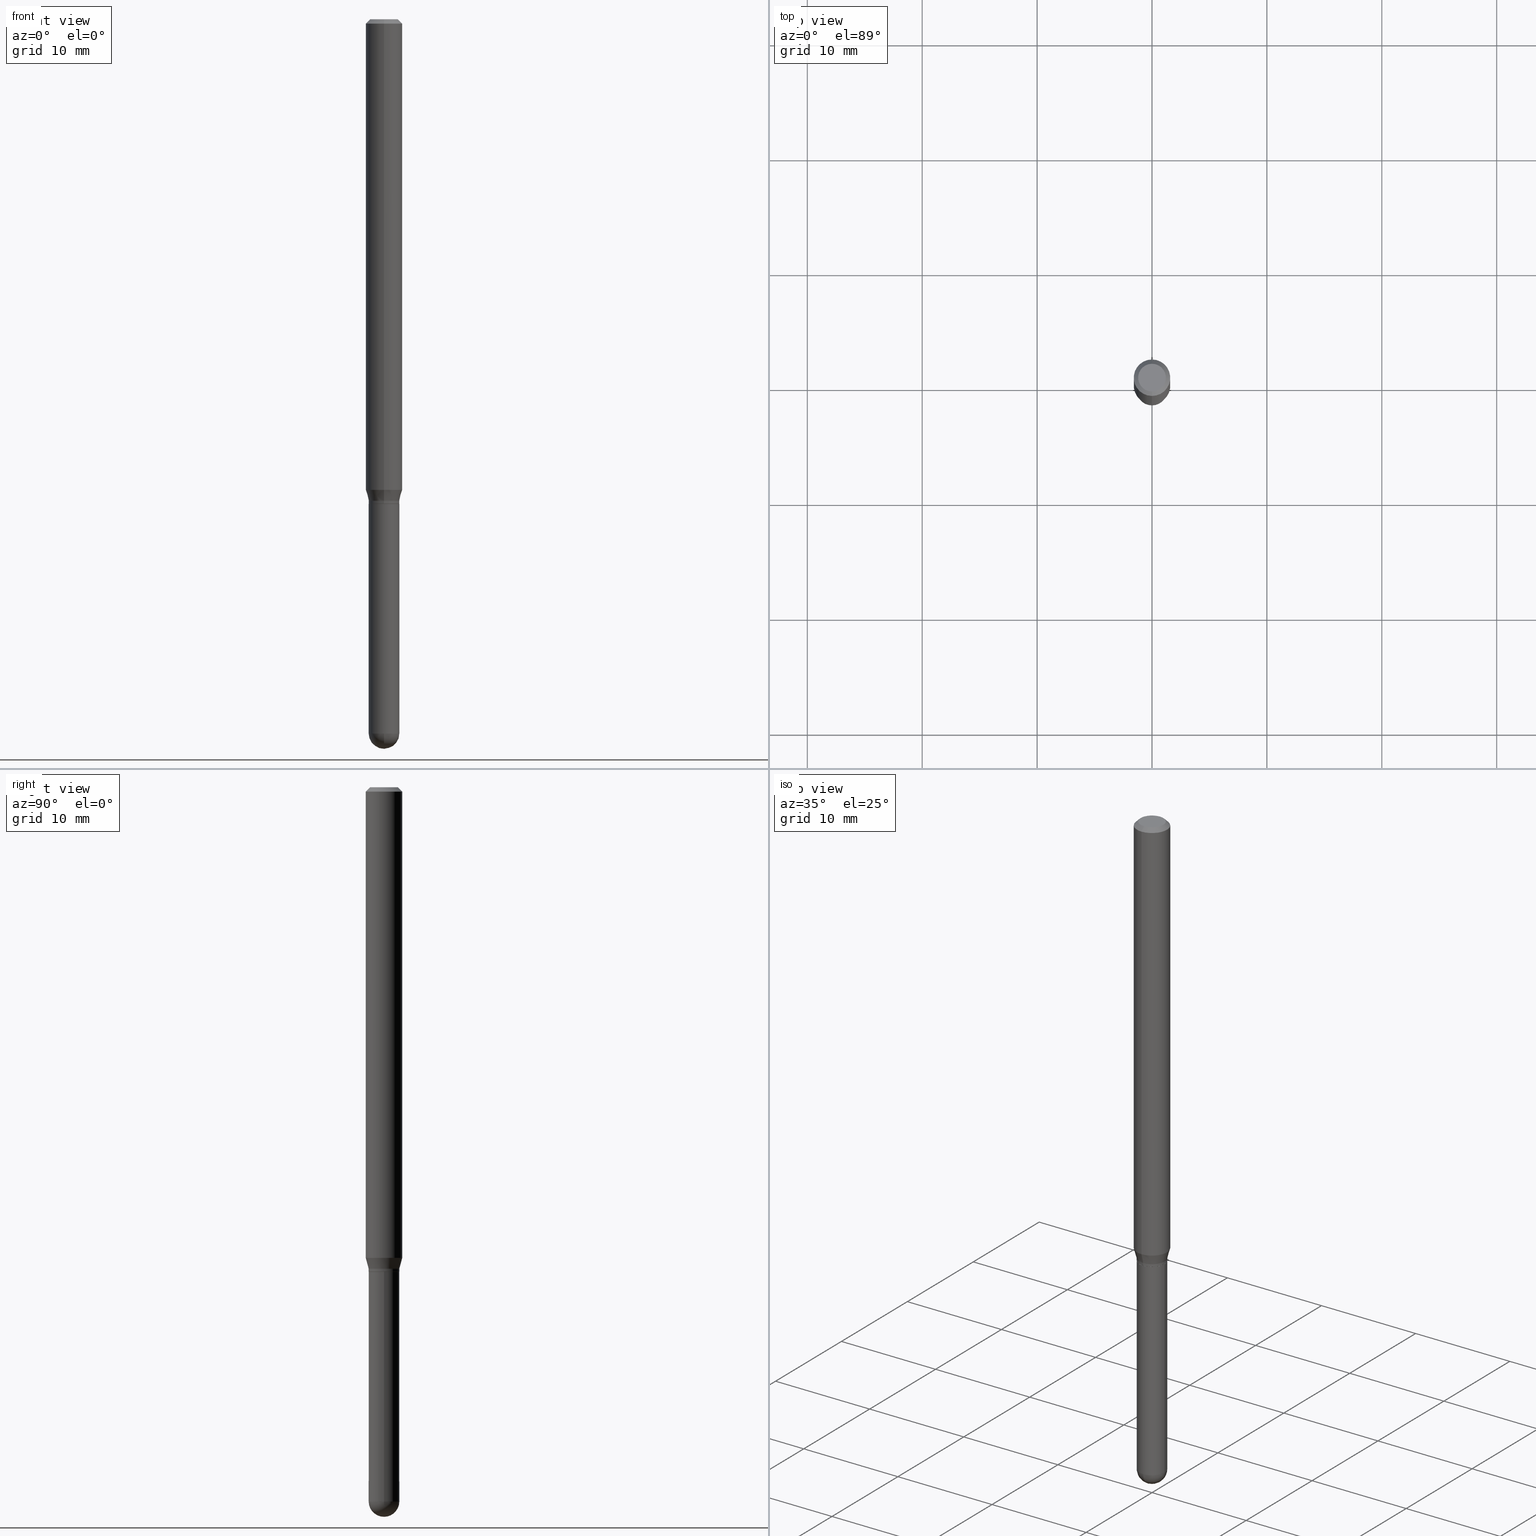
[diagram: canonical four-view strip — front | top / right | iso, engineering-drawing reading convention]
A machine part, canonical four-view strip (front | top / right | iso — engineering-drawing reading convention). The complete STEP part file that produces these views, byte-faithful:
ISO-10303-21;
HEADER;
FILE_DESCRIPTION (( 'STEP AP203' ),
    '1' );
FILE_NAME ('01551.STEP',
    '2024-03-07T19:38:42',
    ( '' ),
    ( '' ),
    'SwSTEP 2.0',
    'SolidWorks 2023',
    '' );
FILE_SCHEMA (( 'CONFIG_CONTROL_DESIGN' ));
ENDSEC;

DATA;
#1 = DIRECTION ( 'NONE',  ( -1.000000000000000000, 6.982962677686265133E-15, -4.883557194083112340E-29 ) ) ;
#2 = CARTESIAN_POINT ( 'NONE',  ( 4.059304744707372422E-29, -5.796107446490983293E-15, -1.660000000000000586 ) ) ;
#3 = CIRCLE ( 'NONE', #291, 0.05250000000000002581 ) ;
#4 = CARTESIAN_POINT ( 'NONE',  ( 3.668046456060879803E-31, -5.237446487793057096E-17, -0.01500000000000000812 ) ) ;
#5 = EDGE_LOOP ( 'NONE', ( #466, #180 ) ) ;
#6 = ADVANCED_FACE ( 'NONE', ( #94 ), #399, .T. ) ;
#7 = LENGTH_MEASURE_WITH_UNIT ( LENGTH_MEASURE( 0.02539999999999999897 ), #196 );
#8 = CIRCLE ( 'NONE', #167, 0.05249999999999964417 ) ;
#9 = ORIENTED_EDGE ( 'NONE', *, *, #28, .F. ) ;
#10 = ORIENTED_EDGE ( 'NONE', *, *, #63, .F. ) ;
#11 = ORIENTED_EDGE ( 'NONE', *, *, #455, .F. ) ;
#12 = EDGE_CURVE ( 'NONE', #283, #255, #172, .T. ) ;
#13 = EDGE_LOOP ( 'NONE', ( #215, #143, #278, #345 ) ) ;
#14 = VERTEX_POINT ( 'NONE', #297 ) ;
#15 = CALENDAR_DATE ( 2024, 7, 3 ) ;
#16 = CARTESIAN_POINT ( 'NONE',  ( -3.631140592396452308E-16, -0.05200000000000579159, -1.660000000000000364 ) ) ;
#17 = ORIENTED_EDGE ( 'NONE', *, *, #130, .F. ) ;
#18 = CLOSED_SHELL ( 'NONE', ( #257, #145, #396, #296, #101 ) ) ;
#19 = AXIS2_PLACEMENT_3D ( 'NONE', #315, #195, #354 ) ;
#20 = PERSON_AND_ORGANIZATION_ROLE ( 'creator' ) ;
#21 = ORIENTED_EDGE ( 'NONE', *, *, #33, .F. ) ;
#22 = EDGE_CURVE ( 'NONE', #45, #253, #258, .T. ) ;
#23 = ORIENTED_EDGE ( 'NONE', *, *, #33, .T. ) ;
#24 = DIRECTION ( 'NONE',  ( 4.937700262164548042E-15, 0.7071067811865451302, -0.7071067811865499042 ) ) ;
#25 = AXIS2_PLACEMENT_3D ( 'NONE', #235, #160, #489 ) ;
#26 = LINE ( 'NONE', #140, #400 ) ;
#27 = CC_DESIGN_APPROVAL ( #141, ( #493 ) ) ;
#28 = EDGE_CURVE ( 'NONE', #273, #30, #209, .T. ) ;
#29 = PERSON_AND_ORGANIZATION ( #330, #239 ) ;
#30 = VERTEX_POINT ( 'NONE', #418 ) ;
#31 = DIRECTION ( 'NONE',  ( -2.445364304040584784E-29, 3.491630991862036470E-15, 1.000000000000000000 ) ) ;
#32 = FACE_OUTER_BOUND ( 'NONE', #128, .T. ) ;
#33 = EDGE_CURVE ( 'NONE', #283, #342, #436, .T. ) ;
#34 = CONICAL_SURFACE ( 'NONE', #509, 0.05250000000000019235, 0.2617993877991508511 ) ;
#35 = DIRECTION ( 'NONE',  ( 6.982962677686265922E-15, 1.000000000000000000, -3.491630991862036470E-15 ) ) ;
#36 = DIRECTION ( 'NONE',  ( -2.445364304040584784E-29, 3.491630991862036470E-15, 1.000000000000000000 ) ) ;
#37 = DIRECTION ( 'NONE',  ( -6.982962677686266711E-15, -1.000000000000000000, 3.491630991862036470E-15 ) ) ;
#38 = FACE_OUTER_BOUND ( 'NONE', #334, .T. ) ;
#39 = CYLINDRICAL_SURFACE ( 'NONE', #19, 0.06250000000000000000 ) ;
#40 = VECTOR ( 'NONE', #495, 39.37007874015748143 ) ;
#41 = APPROVAL_PERSON_ORGANIZATION ( #421, #113, #375 ) ;
#42 = EDGE_CURVE ( 'NONE', #342, #452, #103, .T. ) ;
#43 = EDGE_CURVE ( 'NONE', #328, #14, #3, .T. ) ;
#44 = SHAPE_DEFINITION_REPRESENTATION ( #192, #457 ) ;
#45 = VERTEX_POINT ( 'NONE', #285 ) ;
#46 = AXIS2_PLACEMENT_3D ( 'NONE', #434, #332, #362 ) ;
#47 = CARTESIAN_POINT ( 'NONE',  ( 6.111427203953745667E-29, -8.731918044955625447E-15, -2.500000000000000000 ) ) ;
#48 = EDGE_LOOP ( 'NONE', ( #459, #406 ) ) ;
#49 = CYLINDRICAL_SURFACE ( 'NONE', #89, 0.05249999999999999806 ) ;
#50 = ORIENTED_EDGE ( 'NONE', *, *, #191, .T. ) ;
#51 = PERSON_AND_ORGANIZATION_ROLE ( 'design_owner' ) ;
#52 = EDGE_CURVE ( 'NONE', #262, #408, #212, .T. ) ;
#53 = CYLINDRICAL_SURFACE ( 'NONE', #186, 0.05249999999999991479 ) ;
#54 = ORIENTED_EDGE ( 'NONE', *, *, #312, .F. ) ;
#55 = DATE_AND_TIME ( #415, #447 ) ;
#56 = VECTOR ( 'NONE', #24, 39.37007874015748143 ) ;
#57 = PRODUCT_DEFINITION_FORMATION_WITH_SPECIFIED_SOURCE ( 'ANY', '', #139, .NOT_KNOWN. ) ;
#58 = DIRECTION ( 'NONE',  ( -2.445364304040584784E-29, 3.491630991862036470E-15, 1.000000000000000000 ) ) ;
#59 = CARTESIAN_POINT ( 'NONE',  ( 0.000000000000000000, 0.000000000000000000, 0.000000000000000000 ) ) ;
#60 = CC_DESIGN_DATE_AND_TIME_ASSIGNMENT ( #97, #245, ( #75 ) ) ;
#61 = DIRECTION ( 'NONE',  ( -6.982962677686265922E-15, -1.000000000000000000, 4.370956789862821150E-15 ) ) ;
#62 = DIRECTION ( 'NONE',  ( -1.000000000000000000, 6.982962677686265922E-15, -4.876176775795935793E-29 ) ) ;
#63 = EDGE_CURVE ( 'NONE', #147, #243, #325, .T. ) ;
#64 = DIRECTION ( 'NONE',  ( -2.445364304040584784E-29, 3.491630991862036470E-15, 1.000000000000000000 ) ) ;
#65 = DIRECTION ( 'NONE',  ( -6.982962677686265133E-15, -1.000000000000000000, 5.203519987931965439E-15 ) ) ;
#66 = SECURITY_CLASSIFICATION_LEVEL ( 'unclassified' ) ;
#67 = EDGE_CURVE ( 'NONE', #253, #452, #380, .T. ) ;
#68 = ORIENTED_EDGE ( 'NONE', *, *, #184, .F. ) ;
#69 = AXIS2_PLACEMENT_3D ( 'NONE', #181, #193, #347 ) ;
#70 = APPROVAL_PERSON_ORGANIZATION ( #477, #141, #155 ) ;
#71 = CARTESIAN_POINT ( 'NONE',  ( 3.730349362740519428E-16, 0.05249999999999991479, -1.833106270727566070E-16 ) ) ;
#72 = DATE_AND_TIME ( #470, #384 ) ;
#73 = DIRECTION ( 'NONE',  ( -2.445364304040584784E-29, 3.491630991862036470E-15, 1.000000000000000000 ) ) ;
#74 = LOCAL_TIME ( 14, 38, 42.00000000000000000, #333 ) ;
#75 = PRODUCT_DEFINITION ( 'UNKNOWN', '', #57, #182 ) ;
#76 = FACE_OUTER_BOUND ( 'NONE', #472, .T. ) ;
#77 = CARTESIAN_POINT ( 'NONE',  ( 3.712585794346919227E-16, 0.05199999999999419670, -1.660000000000000808 ) ) ;
#78 = ORIENTED_EDGE ( 'NONE', *, *, #307, .F. ) ;
#79 = EDGE_CURVE ( 'NONE', #488, #161, #474, .T. ) ;
#80 = DIRECTION ( 'NONE',  ( -2.445364304040584784E-29, 3.491630991862036470E-15, 1.000000000000000000 ) ) ;
#81 = CC_DESIGN_PERSON_AND_ORGANIZATION_ASSIGNMENT ( #305, #250, ( #57 ) ) ;
#82 = VECTOR ( 'NONE', #386, 39.37007874015748143 ) ;
#83 = DIRECTION ( 'NONE',  ( -6.982962677686265922E-15, -1.000000000000000000, 3.491630991862036470E-15 ) ) ;
#84 = CIRCLE ( 'NONE', #157, 0.05250000000000019235 ) ;
#85 = CARTESIAN_POINT ( 'NONE',  ( -0.05249999999999999806, -6.797594863375057759E-15, -2.447500000000000231 ) ) ;
#86 = ORIENTED_EDGE ( 'NONE', *, *, #398, .T. ) ;
#87 = DIRECTION ( 'NONE',  ( 1.000000000000000000, -6.982962677686265922E-15, 4.876176775795935232E-29 ) ) ;
#88 = EDGE_LOOP ( 'NONE', ( #154, #338, #511, #91 ) ) ;
#89 = AXIS2_PLACEMENT_3D ( 'NONE', #207, #366, #87 ) ;
#90 = AXIS2_PLACEMENT_3D ( 'NONE', #337, #216, #377 ) ;
#91 = ORIENTED_EDGE ( 'NONE', *, *, #293, .F. ) ;
#92 = ADVANCED_FACE ( 'NONE', ( #76 ), #34, .T. ) ;
#93 = DIRECTION ( 'NONE',  ( -2.445468806185136597E-29, 3.491481338843145583E-15, 1.000000000000000000 ) ) ;
#94 = FACE_OUTER_BOUND ( 'NONE', #376, .T. ) ;
#95 = DIRECTION ( 'NONE',  ( 1.000000000000000000, 0.000000000000000000, 0.000000000000000000 ) ) ;
#96 = LINE ( 'NONE', #205, #357 ) ;
#97 = DATE_AND_TIME ( #287, #74 ) ;
#98 = ORIENTED_EDGE ( 'NONE', *, *, #343, .F. ) ;
#99 = CARTESIAN_POINT ( 'NONE',  ( 4.440892098501022564E-16, 0.06249999999999995143, -0.01500000000000022669 ) ) ;
#100 = ORIENTED_EDGE ( 'NONE', *, *, #411, .T. ) ;
#101 = ADVANCED_FACE ( 'NONE', ( #38 ), #222, .T. ) ;
#102 = ORIENTED_EDGE ( 'NONE', *, *, #52, .T. ) ;
#103 = LINE ( 'NONE', #369, #281 ) ;
#104 = CC_DESIGN_SECURITY_CLASSIFICATION ( #493, ( #57 ) ) ;
#105 = DIRECTION ( 'NONE',  ( -6.982962677686266711E-15, -1.000000000000000000, 3.491630991862037259E-15 ) ) ;
#106 = PLANE ( 'NONE',  #499 ) ;
#107 = CARTESIAN_POINT ( 'NONE',  ( 4.059304744707371862E-29, -5.796107446490981716E-15, -1.660000000000000364 ) ) ;
#108 = DIRECTION ( 'NONE',  ( -6.982962677686266711E-15, -1.000000000000000000, 5.253553833969737838E-15 ) ) ;
#109 = CIRCLE ( 'NONE', #498, 0.05250000000000002581 ) ;
#110 = CIRCLE ( 'NONE', #90, 0.05249999999999999806 ) ;
#111 = DIRECTION ( 'NONE',  ( 1.000000000000000000, -6.982962677686265922E-15, 4.876176775795935232E-29 ) ) ;
#112 = ADVANCED_FACE ( 'NONE', ( #32 ), #279, .T. ) ;
#113 = APPROVAL ( #214, 'UNSPECIFIED' ) ;
#114 = CARTESIAN_POINT ( 'NONE',  ( 2.164932633511182526E-46, -3.091214616149759990E-32, -8.853211073433792894E-18 ) ) ;
#115 = ORIENTED_EDGE ( 'NONE', *, *, #12, .T. ) ;
#116 = AXIS2_PLACEMENT_3D ( 'NONE', #107, #189, #512 ) ;
#117 = ORIENTED_EDGE ( 'NONE', *, *, #130, .T. ) ;
#118 = DIRECTION ( 'NONE',  ( -2.445364304040584784E-29, 3.491630991862036470E-15, 1.000000000000000000 ) ) ;
#119 = CARTESIAN_POINT ( 'NONE',  ( 4.059478218267327378E-29, -5.795859022479622985E-15, -1.660000000000000364 ) ) ;
#120 = EDGE_LOOP ( 'NONE', ( #68, #314, #100, #10 ) ) ;
#121 = DIRECTION ( 'NONE',  ( -2.445468806185136877E-29, 3.491481338843145188E-15, 1.000000000000000000 ) ) ;
#122 = ORIENTED_EDGE ( 'NONE', *, *, #411, .F. ) ;
#123 = ORIENTED_EDGE ( 'NONE', *, *, #293, .T. ) ;
#124 = CONICAL_SURFACE ( 'NONE', #46, 0.05250000000000019235, 0.2617993877991508511 ) ;
#125 = VECTOR ( 'NONE', #138, 39.37007874015748143 ) ;
#126 = CARTESIAN_POINT ( 'NONE',  ( -3.666055405784899636E-16, -0.05250000000000595163, -1.649999999999999911 ) ) ;
#127 = EDGE_CURVE ( 'NONE', #452, #255, #461, .T. ) ;
#128 = EDGE_LOOP ( 'NONE', ( #404, #425, #50, #321 ) ) ;
#129 = APPROVAL_ROLE ( '' ) ;
#130 = EDGE_CURVE ( 'NONE', #243, #283, #311, .T. ) ;
#131 = DIRECTION ( 'NONE',  ( -2.445468806185136597E-29, 3.491481338843145583E-15, 1.000000000000000000 ) ) ;
#132 = CARTESIAN_POINT ( 'NONE',  ( 3.668046456060879803E-31, -5.237446487793057096E-17, -0.01500000000000000812 ) ) ;
#133 = CARTESIAN_POINT ( 'NONE',  ( 4.364351673553919652E-16, 0.06249999999999995143, -0.01500000000000022669 ) ) ;
#134 = MANIFOLD_SOLID_BREP ( 'Body-Move/Copy2[1]', #18 ) ;
#135 = LOCAL_TIME ( 14, 38, 42.00000000000000000, #275 ) ;
#136 = CARTESIAN_POINT ( 'NONE',  ( 4.058082062555351373E-29, -5.794361630995051249E-15, -1.659500000000000419 ) ) ;
#137 = DATE_AND_TIME ( #173, #350 ) ;
#138 = DIRECTION ( 'NONE',  ( -2.445364304040584503E-29, 3.491630991862036470E-15, 1.000000000000000000 ) ) ;
#139 = PRODUCT ( '01551', '01551', '', ( #162 ) ) ;
#140 = CARTESIAN_POINT ( 'NONE',  ( 3.730349362740942455E-16, 0.05249999999999442613, -1.650000000000000355 ) ) ;
#141 = APPROVAL ( #435, 'UNSPECIFIED' ) ;
#142 = CARTESIAN_POINT ( 'NONE',  ( 4.034851101666965454E-29, -5.761191136572359761E-15, -1.650000000000000133 ) ) ;
#143 = ORIENTED_EDGE ( 'NONE', *, *, #163, .T. ) ;
#144 = AXIS2_PLACEMENT_3D ( 'NONE', #187, #1, #261 ) ;
#145 = ADVANCED_FACE ( 'NONE', ( #389 ), #441, .T. ) ;
#146 = DIRECTION ( 'NONE',  ( -1.000000000000000000, 7.105427357601001070E-15, -4.926315508542082329E-29 ) ) ;
#147 = VERTEX_POINT ( 'NONE', #351 ) ;
#148 = CARTESIAN_POINT ( 'NONE',  ( 4.034851101666965454E-29, -5.761191136572359761E-15, -1.650000000000000133 ) ) ;
#149 = EDGE_CURVE ( 'NONE', #328, #220, #109, .T. ) ;
#150 = DIRECTION ( 'NONE',  ( -6.982962677686266711E-15, -1.000000000000000000, 5.253553833969737838E-15 ) ) ;
#151 = EDGE_LOOP ( 'NONE', ( #468, #183, #11, #122 ) ) ;
#152 = CIRCLE ( 'NONE', #355, 0.06250000000000000000 ) ;
#153 = CARTESIAN_POINT ( 'NONE',  ( 0.000000000000000000, 0.000000000000000000, 0.000000000000000000 ) ) ;
#154 = ORIENTED_EDGE ( 'NONE', *, *, #43, .F. ) ;
#155 = APPROVAL_ROLE ( '' ) ;
#156 = ORIENTED_EDGE ( 'NONE', *, *, #149, .F. ) ;
#157 = AXIS2_PLACEMENT_3D ( 'NONE', #424, #64, #218 ) ;
#158 = APPLICATION_CONTEXT ( 'configuration controlled 3d designs of mechanical parts and assemblies' ) ;
#159 = ADVANCED_FACE ( 'NONE', ( #431 ), #164, .T. ) ;
#160 = DIRECTION ( 'NONE',  ( -2.445468806185136597E-29, 3.491481338843145583E-15, 1.000000000000000000 ) ) ;
#161 = VERTEX_POINT ( 'NONE', #77 ) ;
#162 = MECHANICAL_CONTEXT ( 'NONE', #320, 'mechanical' ) ;
#163 = EDGE_CURVE ( 'NONE', #161, #488, #446, .T. ) ;
#164 = CONICAL_SURFACE ( 'NONE', #300, 0.05199999999999999067, 0.7853981633969275844 ) ;
#165 = CC_DESIGN_PERSON_AND_ORGANIZATION_ASSIGNMENT ( #299, #427, ( #57 ) ) ;
#166 = ORIENTED_EDGE ( 'NONE', *, *, #460, .T. ) ;
#167 = AXIS2_PLACEMENT_3D ( 'NONE', #326, #242, #65 ) ;
#168 = DIRECTION ( 'NONE',  ( -2.445364304040584784E-29, 3.491630991862036470E-15, 1.000000000000000000 ) ) ;
#169 = DIMENSIONAL_EXPONENTS ( 1.000000000000000000, 0.000000000000000000, 0.000000000000000000, 0.000000000000000000, 0.000000000000000000, 0.000000000000000000, 0.000000000000000000 ) ;
#170 = CARTESIAN_POINT ( 'NONE',  ( 4.440892098501021578E-16, 0.06249999999999439337, -1.612679491924312591 ) ) ;
#171 = CARTESIAN_POINT ( 'NONE',  ( -4.287811248607203282E-16, -0.06250000000000005551, -0.01499999999999979128 ) ) ;
#172 = LINE ( 'NONE', #473, #419 ) ;
#173 = CALENDAR_DATE ( 2024, 7, 3 ) ;
#174 = ORIENTED_EDGE ( 'NONE', *, *, #455, .T. ) ;
#175 = VECTOR ( 'NONE', #458, 39.37007874015748143 ) ;
#176 = AXIS2_PLACEMENT_3D ( 'NONE', #197, #131, #454 ) ;
#177 = CARTESIAN_POINT ( 'NONE',  ( 5.985284903138122000E-29, -8.545400576818598390E-15, -2.447500000000000231 ) ) ;
#178 = COORDINATED_UNIVERSAL_TIME_OFFSET ( 5, 0, .BEHIND. ) ;
#179 = EDGE_LOOP ( 'NONE', ( #23, #456, #414, #505 ) ) ;
#180 = ORIENTED_EDGE ( 'NONE', *, *, #312, .T. ) ;
#181 = CARTESIAN_POINT ( 'NONE',  ( 3.668046456060879803E-31, -5.237446487793057096E-17, -0.01500000000000000812 ) ) ;
#182 = DESIGN_CONTEXT ( 'detailed design', #158, 'design' ) ;
#183 = ORIENTED_EDGE ( 'NONE', *, *, #184, .T. ) ;
#184 = EDGE_CURVE ( 'NONE', #30, #147, #397, .T. ) ;
#185 = PLANE ( 'NONE',  #116 ) ;
#186 = AXIS2_PLACEMENT_3D ( 'NONE', #59, #420, #282 ) ;
#187 = CARTESIAN_POINT ( 'NONE',  ( 5.980795280119930350E-29, -8.551829972514122554E-15, -2.447500000000000231 ) ) ;
#188 = PRODUCT_RELATED_PRODUCT_CATEGORY ( 'detail', '', ( #139 ) ) ;
#189 = DIRECTION ( 'NONE',  ( -2.445364304040584503E-29, 3.491630991862036470E-15, 1.000000000000000000 ) ) ;
#190 = CARTESIAN_POINT ( 'NONE',  ( 3.943588863410019846E-29, -5.630881693943251588E-15, -1.612679491924312369 ) ) ;
#191 = EDGE_CURVE ( 'NONE', #255, #452, #341, .T. ) ;
#192 = PRODUCT_DEFINITION_SHAPE ( 'NONE', 'NONE',  #75 ) ;
#193 = DIRECTION ( 'NONE',  ( -2.445364304040584784E-29, 3.491630991862036470E-15, 1.000000000000000000 ) ) ;
#194 = DIRECTION ( 'NONE',  ( -6.982962677686265922E-15, -1.000000000000000000, 4.370956789862821150E-15 ) ) ;
#195 = DIRECTION ( 'NONE',  ( -2.445364304040584784E-29, 3.491630991862036470E-15, 1.000000000000000000 ) ) ;
#196 =( LENGTH_UNIT ( ) NAMED_UNIT ( * ) SI_UNIT ( $, .METRE. ) );
#197 = CARTESIAN_POINT ( 'NONE',  ( 5.985284903138122000E-29, -8.545400576818598390E-15, -2.447500000000000231 ) ) ;
#198 = AXIS2_PLACEMENT_3D ( 'NONE', #153, #358, #111 ) ;
#199 = EDGE_LOOP ( 'NONE', ( #324, #373 ) ) ;
#200 = ORIENTED_EDGE ( 'NONE', *, *, #221, .F. ) ;
#201 = FACE_OUTER_BOUND ( 'NONE', #487, .T. ) ;
#202 = EDGE_LOOP ( 'NONE', ( #174, #203, #21, #17 ) ) ;
#203 = ORIENTED_EDGE ( 'NONE', *, *, #356, .T. ) ;
#204 = EDGE_CURVE ( 'NONE', #342, #283, #152, .T. ) ;
#205 = CARTESIAN_POINT ( 'NONE',  ( 0.05249999999999999806, -3.666055405785289629E-16, 2.559992807292866011E-30 ) ) ;
#206 = EDGE_LOOP ( 'NONE', ( #156, #445, #318, #428 ) ) ;
#207 = CARTESIAN_POINT ( 'NONE',  ( 0.000000000000000000, 0.000000000000000000, 0.000000000000000000 ) ) ;
#208 = APPROVAL_DATE_TIME ( #55, #335 ) ;
#209 = CIRCLE ( 'NONE', #349, 0.05249999999999964417 ) ;
#210 = VERTEX_POINT ( 'NONE', #267 ) ;
#211 = AXIS2_PLACEMENT_3D ( 'NONE', #395, #118, #37 ) ;
#212 = LINE ( 'NONE', #502, #40 ) ;
#213 = DIRECTION ( 'NONE',  ( -2.445468806185136597E-29, 3.491481338843145583E-15, 1.000000000000000000 ) ) ;
#214 = APPROVAL_STATUS ( 'not_yet_approved' ) ;
#215 = ORIENTED_EDGE ( 'NONE', *, *, #460, .F. ) ;
#216 = DIRECTION ( 'NONE',  ( -2.445468806185136597E-29, 3.491481338843145583E-15, 1.000000000000000000 ) ) ;
#217 = DIRECTION ( 'NONE',  ( 6.982962677686265922E-15, 1.000000000000000000, -3.483106191921935554E-15 ) ) ;
#218 = DIRECTION ( 'NONE',  ( -6.982962677686265922E-15, -1.000000000000000000, 5.203519987931911007E-15 ) ) ;
#219 = DIRECTION ( 'NONE',  ( -2.445364304040584784E-29, 3.491630991862036470E-15, 1.000000000000000000 ) ) ;
#220 = VERTEX_POINT ( 'NONE', #444 ) ;
#221 = EDGE_CURVE ( 'NONE', #253, #45, #265, .T. ) ;
#222 = CYLINDRICAL_SURFACE ( 'NONE', #198, 0.05249999999999999806 ) ;
#223 = ADVANCED_FACE ( 'NONE', ( #388 ), #185, .F. ) ;
#224 = ORIENTED_EDGE ( 'NONE', *, *, #263, .F. ) ;
#225 = DIRECTION ( 'NONE',  ( -6.982962677686266711E-15, -1.000000000000000000, 5.253553833969737838E-15 ) ) ;
#226 = AXIS2_PLACEMENT_3D ( 'NONE', #114, #80, #105 ) ;
#227 = DIRECTION ( 'NONE',  ( -1.807323732225333689E-15, -0.2588190451025186856, 0.9659258262890687563 ) ) ;
#228 = VECTOR ( 'NONE', #462, 39.37007874015748143 ) ;
#229 = DIRECTION ( 'NONE',  ( 2.445364304040584784E-29, -3.491630991862036470E-15, -1.000000000000000000 ) ) ;
#230 = DIRECTION ( 'NONE',  ( -2.445364304040584784E-29, 3.491630991862036470E-15, 1.000000000000000000 ) ) ;
#231 = AXIS2_PLACEMENT_3D ( 'NONE', #4, #229, #306 ) ;
#232 = APPROVAL_PERSON_ORGANIZATION ( #329, #335, #129 ) ;
#233 = CYLINDRICAL_SURFACE ( 'NONE', #292, 0.06250000000000000000 ) ;
#234 = CC_DESIGN_PERSON_AND_ORGANIZATION_ASSIGNMENT ( #372, #20, ( #75 ) ) ;
#235 = CARTESIAN_POINT ( 'NONE',  ( 5.985284903138122000E-29, -8.545400576818598390E-15, -2.447500000000000231 ) ) ;
#236 = ADVANCED_FACE ( 'NONE', ( #478 ), #124, .T. ) ;
#237 = CIRCLE ( 'NONE', #25, 0.05249999999999999806 ) ;
#238 = ORIENTED_EDGE ( 'NONE', *, *, #276, .T. ) ;
#239 = ORGANIZATION ( 'UNSPECIFIED', 'UNSPECIFIED', '' ) ;
#240 = FACE_OUTER_BOUND ( 'NONE', #206, .T. ) ;
#241 = ORIENTED_EDGE ( 'NONE', *, *, #260, .F. ) ;
#242 = DIRECTION ( 'NONE',  ( -2.445364304040584784E-29, 3.491630991862036470E-15, 1.000000000000000000 ) ) ;
#243 = VERTEX_POINT ( 'NONE', #126 ) ;
#244 = DIRECTION ( 'NONE',  ( 1.000000000000000000, -6.982962677686268288E-15, 0.000000000000000000 ) ) ;
#245 = DATE_TIME_ROLE ( 'creation_date' ) ;
#246 = AXIS2_PLACEMENT_3D ( 'NONE', #119, #213, #244 ) ;
#247 = CIRCLE ( 'NONE', #327, 0.05249999999999999806 ) ;
#248 = CARTESIAN_POINT ( 'NONE',  ( 2.164932633511182526E-46, -3.091214616149759990E-32, -8.853211073433792894E-18 ) ) ;
#249 = FACE_OUTER_BOUND ( 'NONE', #5, .T. ) ;
#250 = PERSON_AND_ORGANIZATION_ROLE ( 'creator' ) ;
#251 = FACE_OUTER_BOUND ( 'NONE', #48, .T. ) ;
#252 = ADVANCED_FACE ( 'NONE', ( #448 ), #53, .T. ) ;
#253 = VERTEX_POINT ( 'NONE', #413 ) ;
#254 = CARTESIAN_POINT ( 'NONE',  ( 3.694822225952925581E-16, 0.05199999999999419670, -1.660000000000000808 ) ) ;
#255 = VERTEX_POINT ( 'NONE', #491 ) ;
#256 = DIRECTION ( 'NONE',  ( -2.445364304040584503E-29, 3.491630991862036470E-15, 1.000000000000000000 ) ) ;
#257 = ADVANCED_FACE ( 'NONE', ( #201 ), #49, .T. ) ;
#258 = CIRCLE ( 'NONE', #391, 0.04749999999999999362 ) ;
#259 = CONICAL_SURFACE ( 'NONE', #371, 0.05199999999999999067, 0.7853981633969275844 ) ;
#260 = EDGE_CURVE ( 'NONE', #497, #408, #485, .T. ) ;
#261 = DIRECTION ( 'NONE',  ( 6.982962677686265133E-15, 1.000000000000000000, -5.203519987931926784E-15 ) ) ;
#262 = VERTEX_POINT ( 'NONE', #85 ) ;
#263 = EDGE_CURVE ( 'NONE', #488, #273, #280, .T. ) ;
#264 = DIRECTION ( 'NONE',  ( -6.982962677686265922E-15, -1.000000000000000000, 3.483106191921935554E-15 ) ) ;
#265 = CIRCLE ( 'NONE', #226, 0.04749999999999999362 ) ;
#266 = CARTESIAN_POINT ( 'NONE',  ( -3.666055405784899636E-16, -0.05250000000000595163, -1.649999999999999911 ) ) ;
#267 = CARTESIAN_POINT ( 'NONE',  ( 0.05249999999999999806, -7.537235340227639453E-15, -2.447500000000000231 ) ) ;
#268 = AXIS2_PLACEMENT_3D ( 'NONE', #142, #219, #294 ) ;
#269 = CC_DESIGN_PERSON_AND_ORGANIZATION_ASSIGNMENT ( #410, #51, ( #139 ) ) ;
#270 = AXIS2_PLACEMENT_3D ( 'NONE', #289, #407, #95 ) ;
#271 = CARTESIAN_POINT ( 'NONE',  ( -3.631140592396452308E-16, -0.05200000000000579159, -1.660000000000000364 ) ) ;
#272 = CARTESIAN_POINT ( 'NONE',  ( -3.666055405784852797E-16, -0.05250000000000534794, -1.659500000000000197 ) ) ;
#273 = VERTEX_POINT ( 'NONE', #272 ) ;
#274 = CARTESIAN_POINT ( 'NONE',  ( 0.000000000000000000, 0.000000000000000000, 0.000000000000000000 ) ) ;
#275 = COORDINATED_UNIVERSAL_TIME_OFFSET ( 5, 0, .BEHIND. ) ;
#276 = EDGE_CURVE ( 'NONE', #220, #210, #237, .T. ) ;
#277 = CARTESIAN_POINT ( 'NONE',  ( 5.980795280119930350E-29, -8.551829972514122554E-15, -2.447500000000000231 ) ) ;
#278 = ORIENTED_EDGE ( 'NONE', *, *, #263, .T. ) ;
#279 = CONICAL_SURFACE ( 'NONE', #231, 0.06250000000000000000, 0.7853981633974483900 ) ;
#280 = LINE ( 'NONE', #16, #175 ) ;
#281 = VECTOR ( 'NONE', #256, 39.37007874015748143 ) ;
#282 = DIRECTION ( 'NONE',  ( -6.982962677686266711E-15, -1.000000000000000000, 3.491630991862036470E-15 ) ) ;
#283 = VERTEX_POINT ( 'NONE', #494 ) ;
#284 = COORDINATED_UNIVERSAL_TIME_OFFSET ( 5, 0, .BEHIND. ) ;
#285 = CARTESIAN_POINT ( 'NONE',  ( -3.773273898774340269E-16, -0.04749999999999999362, 1.569992610400129402E-16 ) ) ;
#286 = SPHERICAL_SURFACE ( 'NONE', #430, 0.05250000000000002581 ) ;
#287 = CALENDAR_DATE ( 2024, 7, 3 ) ;
#288 = DIRECTION ( 'NONE',  ( 1.839019923739603865E-15, 0.2588190451025254579, 0.9659258262890669799 ) ) ;
#289 = CARTESIAN_POINT ( 'NONE',  ( 0.000000000000000000, 0.000000000000000000, 0.000000000000000000 ) ) ;
#290 = LINE ( 'NONE', #500, #125 ) ;
#291 = AXIS2_PLACEMENT_3D ( 'NONE', #331, #422, #469 ) ;
#292 = AXIS2_PLACEMENT_3D ( 'NONE', #274, #360, #83 ) ;
#293 = EDGE_CURVE ( 'NONE', #14, #262, #309, .T. ) ;
#294 = DIRECTION ( 'NONE',  ( -6.982962677686265922E-15, -1.000000000000000000, 5.203519987931911007E-15 ) ) ;
#295 = ORIENTED_EDGE ( 'NONE', *, *, #63, .T. ) ;
#296 = ADVANCED_FACE ( 'NONE', ( #240 ), #286, .T. ) ;
#297 = CARTESIAN_POINT ( 'NONE',  ( 3.666055405785888670E-16, 0.05249999999999146322, -2.447500000000000231 ) ) ;
#298 = CARTESIAN_POINT ( 'NONE',  ( 3.666055405785695399E-16, 0.05249999999999419714, -1.660000000000000586 ) ) ;
#299 = PERSON_AND_ORGANIZATION ( #330, #239 ) ;
#300 = AXIS2_PLACEMENT_3D ( 'NONE', #393, #304, #108 ) ;
#301 = CIRCLE ( 'NONE', #392, 0.05249999999999999806 ) ;
#302 = DIRECTION ( 'NONE',  ( -7.105427357601001070E-15, -1.000000000000000000, 0.000000000000000000 ) ) ;
#303 = MANIFOLD_SOLID_BREP ( 'Body-Move/Copy2[2]', #417 ) ;
#304 = DIRECTION ( 'NONE',  ( -2.445364304040584784E-29, 3.491630991862036470E-15, 1.000000000000000000 ) ) ;
#305 = PERSON_AND_ORGANIZATION ( #330, #239 ) ;
#306 = DIRECTION ( 'NONE',  ( 6.982962677686265922E-15, 1.000000000000000000, -3.483106191921935554E-15 ) ) ;
#307 = EDGE_CURVE ( 'NONE', #210, #497, #96, .T. ) ;
#308 = DIRECTION ( 'NONE',  ( -6.982962677686266711E-15, -1.000000000000000000, 5.253553833969737838E-15 ) ) ;
#309 = CIRCLE ( 'NONE', #176, 0.05249999999999999806 ) ;
#310 = FACE_OUTER_BOUND ( 'NONE', #120, .T. ) ;
#311 = LINE ( 'NONE', #266, #453 ) ;
#312 = EDGE_CURVE ( 'NONE', #408, #497, #247, .T. ) ;
#313 = FACE_OUTER_BOUND ( 'NONE', #179, .T. ) ;
#314 = ORIENTED_EDGE ( 'NONE', *, *, #339, .T. ) ;
#315 = CARTESIAN_POINT ( 'NONE',  ( 0.000000000000000000, 0.000000000000000000, 0.000000000000000000 ) ) ;
#316 = AXIS2_PLACEMENT_3D ( 'NONE', #438, #230, #264 ) ;
#317 = UNCERTAINTY_MEASURE_WITH_UNIT (LENGTH_MEASURE( 1.000000000000000082E-05 ), #352, 'distance_accuracy_value', 'NONE');
#318 = ORIENTED_EDGE ( 'NONE', *, *, #398, .F. ) ;
#319 = FACE_OUTER_BOUND ( 'NONE', #492, .T. ) ;
#320 = APPLICATION_CONTEXT ( 'configuration controlled 3d designs of mechanical parts and assemblies' ) ;
#321 = ORIENTED_EDGE ( 'NONE', *, *, #67, .F. ) ;
#322 = EDGE_LOOP ( 'NONE', ( #365, #166, #9, #224 ) ) ;
#323 = DIRECTION ( 'NONE',  ( 6.982962677686265133E-15, 1.000000000000000000, -5.203519987931926784E-15 ) ) ;
#324 = ORIENTED_EDGE ( 'NONE', *, *, #79, .F. ) ;
#325 = CIRCLE ( 'NONE', #268, 0.05250000000000019235 ) ;
#326 = CARTESIAN_POINT ( 'NONE',  ( 4.058082062555351373E-29, -5.794361630995051249E-15, -1.659500000000000419 ) ) ;
#327 = AXIS2_PLACEMENT_3D ( 'NONE', #405, #93, #364 ) ;
#328 = VERTEX_POINT ( 'NONE', #47 ) ;
#329 = PERSON_AND_ORGANIZATION ( #330, #239 ) ;
#330 = PERSON ( 'UNSPECIFIED', 'UNSPECIFIED', 'UNSPECIFIED', ('UNSPECIFIED'), ('UNSPECIFIED'), ('UNSPECIFIED') ) ;
#331 = CARTESIAN_POINT ( 'NONE',  ( 5.980795280119930350E-29, -8.551829972514122554E-15, -2.447500000000000231 ) ) ;
#332 = DIRECTION ( 'NONE',  ( -2.445364304040584784E-29, 3.491630991862036470E-15, 1.000000000000000000 ) ) ;
#333 = COORDINATED_UNIVERSAL_TIME_OFFSET ( 5, 0, .BEHIND. ) ;
#334 = EDGE_LOOP ( 'NONE', ( #409, #379, #238, #383, #54 ) ) ;
#335 = APPROVAL ( #464, 'UNSPECIFIED' ) ;
#336 = DIRECTION ( 'NONE',  ( -6.982962677686265133E-15, -1.000000000000000000, 5.203519987931965439E-15 ) ) ;
#337 = CARTESIAN_POINT ( 'NONE',  ( 5.985284903138122000E-29, -8.545400576818598390E-15, -2.447500000000000231 ) ) ;
#338 = ORIENTED_EDGE ( 'NONE', *, *, #149, .T. ) ;
#339 = EDGE_CURVE ( 'NONE', #30, #273, #8, .T. ) ;
#340 = DIRECTION ( 'NONE',  ( -2.445364304040584503E-29, 3.491630991862036470E-15, 1.000000000000000000 ) ) ;
#341 = CIRCLE ( 'NONE', #69, 0.06250000000000000000 ) ;
#342 = VERTEX_POINT ( 'NONE', #170 ) ;
#343 = EDGE_CURVE ( 'NONE', #45, #255, #381, .T. ) ;
#344 = DIRECTION ( 'NONE',  ( -2.445468806185136597E-29, 3.491481338843145583E-15, 1.000000000000000000 ) ) ;
#345 = ORIENTED_EDGE ( 'NONE', *, *, #339, .F. ) ;
#346 = CARTESIAN_POINT ( 'NONE',  ( 3.943588863410019846E-29, -5.630881693943251588E-15, -1.612679491924312369 ) ) ;
#347 = DIRECTION ( 'NONE',  ( -6.982962677686265922E-15, -1.000000000000000000, 3.483106191921935554E-15 ) ) ;
#348 = COORDINATED_UNIVERSAL_TIME_OFFSET ( 5, 0, .BEHIND. ) ;
#349 = AXIS2_PLACEMENT_3D ( 'NONE', #136, #426, #336 ) ;
#350 = LOCAL_TIME ( 14, 38, 42.00000000000000000, #348 ) ;
#351 = CARTESIAN_POINT ( 'NONE',  ( 4.085620730620982017E-16, 0.05249999999999442613, -1.650000000000000355 ) ) ;
#352 =( CONVERSION_BASED_UNIT ( 'INCH', #7 ) LENGTH_UNIT ( ) NAMED_UNIT ( #169 ) );
#353 = ORIENTED_EDGE ( 'NONE', *, *, #127, .F. ) ;
#354 = DIRECTION ( 'NONE',  ( -6.982962677686265922E-15, -1.000000000000000000, 3.491630991862036470E-15 ) ) ;
#355 = AXIS2_PLACEMENT_3D ( 'NONE', #190, #508, #194 ) ;
#356 = EDGE_CURVE ( 'NONE', #147, #342, #26, .T. ) ;
#357 = VECTOR ( 'NONE', #121, 39.37007874015748143 ) ;
#358 = DIRECTION ( 'NONE',  ( -2.445468806185136597E-29, 3.491481338843145583E-15, 1.000000000000000000 ) ) ;
#359 = CC_DESIGN_APPROVAL ( #113, ( #57 ) ) ;
#360 = DIRECTION ( 'NONE',  ( -2.445364304040584784E-29, 3.491630991862036470E-15, 1.000000000000000000 ) ) ;
#361 = AXIS2_PLACEMENT_3D ( 'NONE', #429, #73, #225 ) ;
#362 = DIRECTION ( 'NONE',  ( -6.982962677686265922E-15, -1.000000000000000000, 5.203519987931911007E-15 ) ) ;
#363 = ORIENTED_EDGE ( 'NONE', *, *, #42, .F. ) ;
#364 = DIRECTION ( 'NONE',  ( 1.000000000000000000, -6.982962677686268288E-15, 0.000000000000000000 ) ) ;
#365 = ORIENTED_EDGE ( 'NONE', *, *, #79, .T. ) ;
#366 = DIRECTION ( 'NONE',  ( -2.445468806185136597E-29, 3.491481338843145583E-15, 1.000000000000000000 ) ) ;
#367 = ORIENTED_EDGE ( 'NONE', *, *, #127, .T. ) ;
#368 = APPLICATION_PROTOCOL_DEFINITION ( 'international standard', 'config_control_design', 1994, #158 ) ;
#369 = CARTESIAN_POINT ( 'NONE',  ( 4.440892098500625669E-16, 0.06250000000000000000, -2.182269369913772794E-16 ) ) ;
#370 = AXIS2_PLACEMENT_3D ( 'NONE', #132, #504, #217 ) ;
#371 = AXIS2_PLACEMENT_3D ( 'NONE', #2, #450, #308 ) ;
#372 = PERSON_AND_ORGANIZATION ( #330, #239 ) ;
#373 = ORIENTED_EDGE ( 'NONE', *, *, #163, .F. ) ;
#374 = DIRECTION ( 'NONE',  ( 2.438088387897960049E-29, -3.491481338843145188E-15, -1.000000000000000000 ) ) ;
#375 = APPROVAL_ROLE ( '' ) ;
#376 = EDGE_LOOP ( 'NONE', ( #98, #200, #501, #367 ) ) ;
#377 = DIRECTION ( 'NONE',  ( 1.000000000000000000, -6.982962677686250144E-15, 0.000000000000000000 ) ) ;
#378 = EDGE_CURVE ( 'NONE', #262, #220, #301, .T. ) ;
#379 = ORIENTED_EDGE ( 'NONE', *, *, #378, .T. ) ;
#380 = LINE ( 'NONE', #133, #56 ) ;
#381 = LINE ( 'NONE', #171, #228 ) ;
#382 = AXIS2_PLACEMENT_3D ( 'NONE', #346, #168, #61 ) ;
#383 = ORIENTED_EDGE ( 'NONE', *, *, #307, .T. ) ;
#384 = LOCAL_TIME ( 14, 38, 42.00000000000000000, #178 ) ;
#385 = CC_DESIGN_PERSON_AND_ORGANIZATION_ASSIGNMENT ( #29, #507, ( #493 ) ) ;
#386 = DIRECTION ( 'NONE',  ( -2.445364304040584503E-29, 3.491630991862036470E-15, 1.000000000000000000 ) ) ;
#387 = APPROVAL_DATE_TIME ( #137, #113 ) ;
#388 = FACE_OUTER_BOUND ( 'NONE', #199, .T. ) ;
#389 = FACE_OUTER_BOUND ( 'NONE', #88, .T. ) ;
#390 = CARTESIAN_POINT ( 'NONE',  ( 3.316907271900976096E-16, 0.04749999999999999362, -1.702790776501636141E-16 ) ) ;
#391 = AXIS2_PLACEMENT_3D ( 'NONE', #248, #58, #412 ) ;
#392 = AXIS2_PLACEMENT_3D ( 'NONE', #177, #344, #423 ) ;
#393 = CARTESIAN_POINT ( 'NONE',  ( 4.059304744707372422E-29, -5.796107446490983293E-15, -1.660000000000000586 ) ) ;
#394 = CARTESIAN_POINT ( 'NONE',  ( 4.059304744707372422E-29, -5.796107446490983293E-15, -1.660000000000000586 ) ) ;
#395 = CARTESIAN_POINT ( 'NONE',  ( 0.000000000000000000, 0.000000000000000000, 0.000000000000000000 ) ) ;
#396 = ADVANCED_FACE ( 'NONE', ( #249 ), #503, .F. ) ;
#397 = LINE ( 'NONE', #71, #82 ) ;
#398 = EDGE_CURVE ( 'NONE', #210, #14, #110, .T. ) ;
#399 = CONICAL_SURFACE ( 'NONE', #370, 0.06250000000000000000, 0.7853981633974483900 ) ;
#400 = VECTOR ( 'NONE', #288, 39.37007874015748854 ) ;
#401 = FACE_OUTER_BOUND ( 'NONE', #13, .T. ) ;
#402 = CARTESIAN_POINT ( 'NONE',  ( 0.05249999999999999806, -6.162464563058152145E-15, -1.660000000000000364 ) ) ;
#403 = DATE_AND_TIME ( #15, #135 ) ;
#404 = ORIENTED_EDGE ( 'NONE', *, *, #22, .F. ) ;
#405 = CARTESIAN_POINT ( 'NONE',  ( 4.059478218267327378E-29, -5.795859022479622985E-15, -1.660000000000000364 ) ) ;
#406 = ORIENTED_EDGE ( 'NONE', *, *, #22, .T. ) ;
#407 = DIRECTION ( 'NONE',  ( 0.000000000000000000, 0.000000000000000000, 1.000000000000000000 ) ) ;
#408 = VERTEX_POINT ( 'NONE', #510 ) ;
#409 = ORIENTED_EDGE ( 'NONE', *, *, #52, .F. ) ;
#410 = PERSON_AND_ORGANIZATION ( #330, #239 ) ;
#411 = EDGE_CURVE ( 'NONE', #273, #243, #290, .T. ) ;
#412 = DIRECTION ( 'NONE',  ( -6.982962677686266711E-15, -1.000000000000000000, 3.491630991862037259E-15 ) ) ;
#413 = CARTESIAN_POINT ( 'NONE',  ( 3.840629472727447874E-16, 0.04749999999999999362, -1.747056831868805383E-16 ) ) ;
#414 = ORIENTED_EDGE ( 'NONE', *, *, #191, .F. ) ;
#415 = CALENDAR_DATE ( 2024, 7, 3 ) ;
#416 = ORIENTED_EDGE ( 'NONE', *, *, #204, .T. ) ;
#417 = CLOSED_SHELL ( 'NONE', ( #252, #159, #112, #479, #236, #92, #490, #6, #439, #223, #506, #476 ) ) ;
#418 = CARTESIAN_POINT ( 'NONE',  ( 3.730349362740912380E-16, 0.05249999999999394040, -1.659500000000000641 ) ) ;
#419 = VECTOR ( 'NONE', #340, 39.37007874015748143 ) ;
#420 = DIRECTION ( 'NONE',  ( -2.445364304040584784E-29, 3.491630991862036470E-15, 1.000000000000000000 ) ) ;
#421 = PERSON_AND_ORGANIZATION ( #330, #239 ) ;
#422 = DIRECTION ( 'NONE',  ( 1.000000000000000000, -6.982962677686265922E-15, 4.883557194083112340E-29 ) ) ;
#423 = DIRECTION ( 'NONE',  ( 1.000000000000000000, -6.982962677686250144E-15, 0.000000000000000000 ) ) ;
#424 = CARTESIAN_POINT ( 'NONE',  ( 4.034851101666965454E-29, -5.761191136572359761E-15, -1.650000000000000133 ) ) ;
#425 = ORIENTED_EDGE ( 'NONE', *, *, #343, .T. ) ;
#426 = DIRECTION ( 'NONE',  ( -2.445364304040584784E-29, 3.491630991862036470E-15, 1.000000000000000000 ) ) ;
#427 = PERSON_AND_ORGANIZATION_ROLE ( 'design_supplier' ) ;
#428 = ORIENTED_EDGE ( 'NONE', *, *, #276, .F. ) ;
#429 = CARTESIAN_POINT ( 'NONE',  ( 4.059304744707372422E-29, -5.796107446490983293E-15, -1.660000000000000586 ) ) ;
#430 = AXIS2_PLACEMENT_3D ( 'NONE', #277, #451, #323 ) ;
#431 = FACE_OUTER_BOUND ( 'NONE', #322, .T. ) ;
#432 = ORIENTED_EDGE ( 'NONE', *, *, #204, .F. ) ;
#433 = DIRECTION ( 'NONE',  ( -6.982962677686265922E-15, -1.000000000000000000, 5.203519987931911007E-15 ) ) ;
#434 = CARTESIAN_POINT ( 'NONE',  ( 4.034851101666965454E-29, -5.761191136572359761E-15, -1.650000000000000133 ) ) ;
#435 = APPROVAL_STATUS ( 'not_yet_approved' ) ;
#436 = CIRCLE ( 'NONE', #382, 0.06250000000000000000 ) ;
#437 = AXIS2_PLACEMENT_3D ( 'NONE', #298, #374, #62 ) ;
#438 = CARTESIAN_POINT ( 'NONE',  ( 3.668046456060879803E-31, -5.237446487793057096E-17, -0.01500000000000000812 ) ) ;
#439 = ADVANCED_FACE ( 'NONE', ( #251 ), #106, .F. ) ;
#440 =( NAMED_UNIT ( * ) PLANE_ANGLE_UNIT ( ) SI_UNIT ( $, .RADIAN. ) );
#441 = SPHERICAL_SURFACE ( 'NONE', #144, 0.05250000000000002581 ) ;
#442 =( NAMED_UNIT ( * ) SI_UNIT ( $, .STERADIAN. ) SOLID_ANGLE_UNIT ( ) );
#443 = CC_DESIGN_DATE_AND_TIME_ASSIGNMENT ( #72, #475, ( #493 ) ) ;
#444 = CARTESIAN_POINT ( 'NONE',  ( -3.730349362739928276E-16, -0.05250000000000856065, -2.447499999999999787 ) ) ;
#445 = ORIENTED_EDGE ( 'NONE', *, *, #43, .T. ) ;
#446 = CIRCLE ( 'NONE', #481, 0.05199999999999999067 ) ;
#447 = LOCAL_TIME ( 14, 38, 42.00000000000000000, #284 ) ;
#448 = FACE_OUTER_BOUND ( 'NONE', #151, .T. ) ;
#449 = ORIENTED_EDGE ( 'NONE', *, *, #356, .F. ) ;
#450 = DIRECTION ( 'NONE',  ( -2.445364304040584784E-29, 3.491630991862036470E-15, 1.000000000000000000 ) ) ;
#451 = DIRECTION ( 'NONE',  ( -1.000000000000000000, 6.982962677686265133E-15, -4.883557194083112340E-29 ) ) ;
#452 = VERTEX_POINT ( 'NONE', #99 ) ;
#453 = VECTOR ( 'NONE', #227, 39.37007874015748854 ) ;
#454 = DIRECTION ( 'NONE',  ( 1.000000000000000000, -6.982962677686250144E-15, 0.000000000000000000 ) ) ;
#455 = EDGE_CURVE ( 'NONE', #243, #147, #84, .T. ) ;
#456 = ORIENTED_EDGE ( 'NONE', *, *, #42, .T. ) ;
#457 = ADVANCED_BREP_SHAPE_REPRESENTATION ( '01551', ( #134, #303, #270 ), #463 ) ;
#458 = DIRECTION ( 'NONE',  ( -4.937700262161976356E-15, -0.7071067811861768693, 0.7071067811869181652 ) ) ;
#459 = ORIENTED_EDGE ( 'NONE', *, *, #221, .T. ) ;
#460 = EDGE_CURVE ( 'NONE', #161, #30, #467, .T. ) ;
#461 = CIRCLE ( 'NONE', #316, 0.06250000000000000000 ) ;
#462 = DIRECTION ( 'NONE',  ( -4.851104656540964275E-15, -0.7071067811865500152, -0.7071067811865450192 ) ) ;
#463 =( GEOMETRIC_REPRESENTATION_CONTEXT ( 3 ) GLOBAL_UNCERTAINTY_ASSIGNED_CONTEXT ( ( #317 ) ) GLOBAL_UNIT_ASSIGNED_CONTEXT ( ( #352, #440, #442 ) ) REPRESENTATION_CONTEXT ( 'NONE', 'WORKASPACE' ) );
#464 = APPROVAL_STATUS ( 'not_yet_approved' ) ;
#465 = DIRECTION ( 'NONE',  ( 2.445364304040584503E-29, -3.491630991862036470E-15, -1.000000000000000000 ) ) ;
#466 = ORIENTED_EDGE ( 'NONE', *, *, #260, .T. ) ;
#467 = LINE ( 'NONE', #254, #482 ) ;
#468 = ORIENTED_EDGE ( 'NONE', *, *, #28, .T. ) ;
#469 = DIRECTION ( 'NONE',  ( 6.982962677686265922E-15, 1.000000000000000000, 0.000000000000000000 ) ) ;
#470 = CALENDAR_DATE ( 2024, 7, 3 ) ;
#471 = DIRECTION ( 'NONE',  ( 5.024295867785445738E-15, 0.7071067811861817543, 0.7071067811869132802 ) ) ;
#472 = EDGE_LOOP ( 'NONE', ( #449, #295, #117, #432 ) ) ;
#473 = CARTESIAN_POINT ( 'NONE',  ( -4.364351673553916201E-16, -0.06250000000000000000, 2.182269369913772794E-16 ) ) ;
#474 = CIRCLE ( 'NONE', #361, 0.05199999999999999067 ) ;
#475 = DATE_TIME_ROLE ( 'classification_date' ) ;
#476 = ADVANCED_FACE ( 'NONE', ( #310 ), #483, .T. ) ;
#477 = PERSON_AND_ORGANIZATION ( #330, #239 ) ;
#478 = FACE_OUTER_BOUND ( 'NONE', #202, .T. ) ;
#479 = ADVANCED_FACE ( 'NONE', ( #313 ), #39, .T. ) ;
#480 = CARTESIAN_POINT ( 'NONE',  ( 5.980795280119930350E-29, -8.551829972514122554E-15, -2.447500000000000231 ) ) ;
#481 = AXIS2_PLACEMENT_3D ( 'NONE', #394, #36, #150 ) ;
#482 = VECTOR ( 'NONE', #471, 39.37007874015748143 ) ;
#483 = CYLINDRICAL_SURFACE ( 'NONE', #211, 0.05249999999999991479 ) ;
#484 = APPROVAL_DATE_TIME ( #403, #141 ) ;
#485 = CIRCLE ( 'NONE', #246, 0.05249999999999999806 ) ;
#486 = CC_DESIGN_APPROVAL ( #335, ( #75 ) ) ;
#487 = EDGE_LOOP ( 'NONE', ( #123, #102, #241, #78, #86 ) ) ;
#488 = VERTEX_POINT ( 'NONE', #271 ) ;
#489 = DIRECTION ( 'NONE',  ( 1.000000000000000000, -6.982962677686250144E-15, 0.000000000000000000 ) ) ;
#490 = ADVANCED_FACE ( 'NONE', ( #319 ), #233, .T. ) ;
#491 = CARTESIAN_POINT ( 'NONE',  ( -4.364351673553912750E-16, -0.06250000000000005551, -0.01499999999999979128 ) ) ;
#492 = EDGE_LOOP ( 'NONE', ( #363, #416, #115, #353 ) ) ;
#493 = SECURITY_CLASSIFICATION ( '', '', #66 ) ;
#494 = CARTESIAN_POINT ( 'NONE',  ( -4.364351673553520291E-16, -0.06250000000000560663, -1.612679491924311925 ) ) ;
#495 = DIRECTION ( 'NONE',  ( -2.445468806185136877E-29, 3.491481338843145188E-15, 1.000000000000000000 ) ) ;
#496 = APPLICATION_PROTOCOL_DEFINITION ( 'international standard', 'config_control_design', 1994, #320 ) ;
#497 = VERTEX_POINT ( 'NONE', #402 ) ;
#498 = AXIS2_PLACEMENT_3D ( 'NONE', #480, #146, #302 ) ;
#499 = AXIS2_PLACEMENT_3D ( 'NONE', #390, #465, #35 ) ;
#500 = CARTESIAN_POINT ( 'NONE',  ( -3.666055405785284205E-16, -0.05249999999999991479, 1.833106270727566070E-16 ) ) ;
#501 = ORIENTED_EDGE ( 'NONE', *, *, #67, .T. ) ;
#502 = CARTESIAN_POINT ( 'NONE',  ( -0.05249999999999999806, 3.730349362740525838E-16, -2.582440922383825311E-30 ) ) ;
#503 = PLANE ( 'NONE',  #437 ) ;
#504 = DIRECTION ( 'NONE',  ( 2.445364304040584784E-29, -3.491630991862036470E-15, -1.000000000000000000 ) ) ;
#505 = ORIENTED_EDGE ( 'NONE', *, *, #12, .F. ) ;
#506 = ADVANCED_FACE ( 'NONE', ( #401 ), #259, .T. ) ;
#507 = PERSON_AND_ORGANIZATION_ROLE ( 'classification_officer' ) ;
#508 = DIRECTION ( 'NONE',  ( -2.445364304040584784E-29, 3.491630991862036470E-15, 1.000000000000000000 ) ) ;
#509 = AXIS2_PLACEMENT_3D ( 'NONE', #148, #31, #433 ) ;
#510 = CARTESIAN_POINT ( 'NONE',  ( -0.05249999999999999806, -6.797594863375057759E-15, -1.660000000000000364 ) ) ;
#511 = ORIENTED_EDGE ( 'NONE', *, *, #378, .F. ) ;
#512 = DIRECTION ( 'NONE',  ( -6.982962677686265922E-15, -1.000000000000000000, 3.491630991862036470E-15 ) ) ;
ENDSEC;
END-ISO-10303-21;
